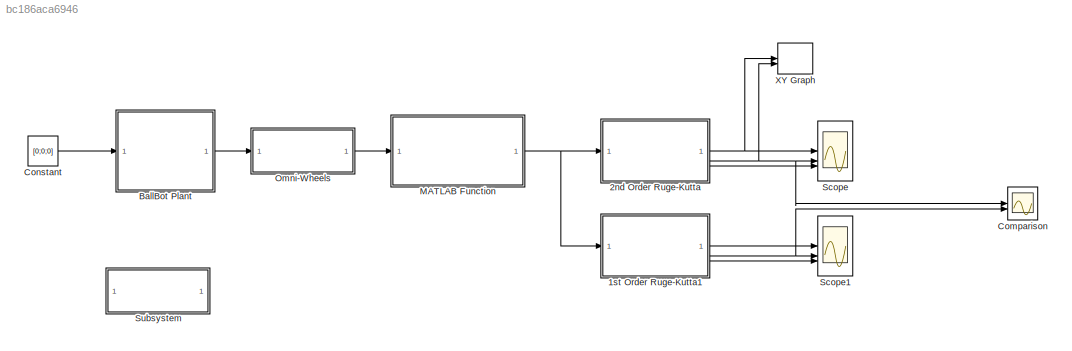
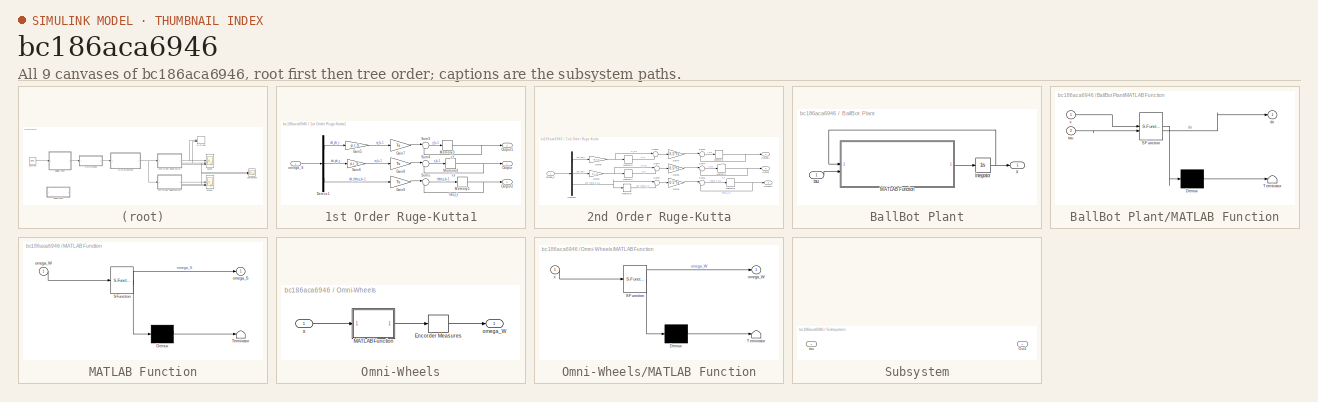
[diagram: thumbnail index - all 9 canvases of the model, root first then tree order]
MODEL slx_bc186aca6946
KIND model
CONFIG AbsTol = auto
CONFIG EnableMultiTasking = off
CONFIG FixedStep = auto
CONFIG MaxStep = auto
CONFIG MinStep = auto
CONFIG RelTol = 1e-3
CONFIG SampleTimeConstraint = Unconstrained
CONFIG SolverName = VariableStepAuto
CONFIG StartTime = 0.0
CONFIG StopTime = 10.0
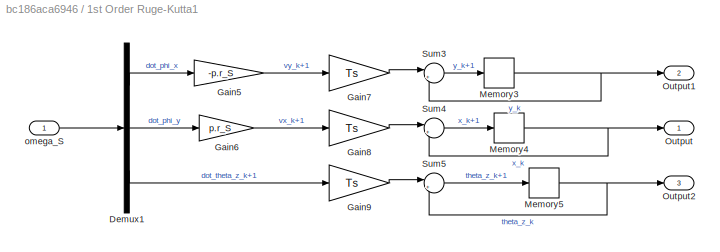
BLOCK [SubSystem] 1st Order Ruge-Kutta1
BLOCK [Demux] 1st Order Ruge-Kutta1/Demux1
  Outputs = 3
BLOCK [Gain] 1st Order Ruge-Kutta1/Gain5
  Gain = -p.r_S
BLOCK [Gain] 1st Order Ruge-Kutta1/Gain6
  Gain = p.r_S
BLOCK [Gain] 1st Order Ruge-Kutta1/Gain7
  Gain = Ts
BLOCK [Gain] 1st Order Ruge-Kutta1/Gain8
  Gain = Ts
BLOCK [Gain] 1st Order Ruge-Kutta1/Gain9
  Gain = Ts
BLOCK [Memory] 1st Order Ruge-Kutta1/Memory3
BLOCK [Memory] 1st Order Ruge-Kutta1/Memory4
BLOCK [Memory] 1st Order Ruge-Kutta1/Memory5
BLOCK [Outport] 1st Order Ruge-Kutta1/Output
BLOCK [Outport] 1st Order Ruge-Kutta1/Output1
  Port = 2
BLOCK [Outport] 1st Order Ruge-Kutta1/Output2
  Port = 3
BLOCK [Sum] 1st Order Ruge-Kutta1/Sum3
  Inputs = |++
BLOCK [Sum] 1st Order Ruge-Kutta1/Sum4
  Inputs = |++
BLOCK [Sum] 1st Order Ruge-Kutta1/Sum5
  Inputs = |++
BLOCK [Inport] 1st Order Ruge-Kutta1/omega_S
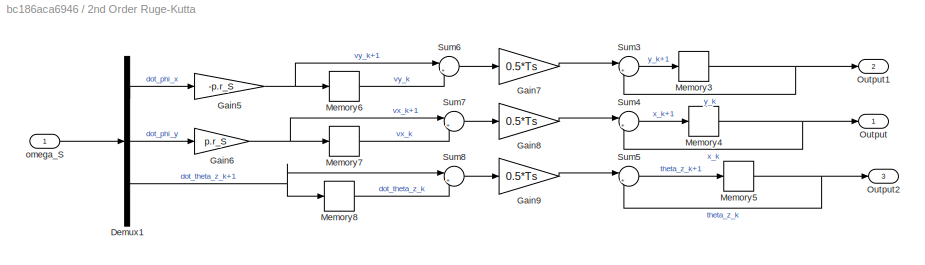
BLOCK [SubSystem] 2nd Order Ruge-Kutta
BLOCK [Demux] 2nd Order Ruge-Kutta/Demux1
  Outputs = 3
BLOCK [Gain] 2nd Order Ruge-Kutta/Gain5
  Gain = -p.r_S
BLOCK [Gain] 2nd Order Ruge-Kutta/Gain6
  Gain = p.r_S
BLOCK [Gain] 2nd Order Ruge-Kutta/Gain7
  Gain = 0.5*Ts
BLOCK [Gain] 2nd Order Ruge-Kutta/Gain8
  Gain = 0.5*Ts
BLOCK [Gain] 2nd Order Ruge-Kutta/Gain9
  Gain = 0.5*Ts
BLOCK [Memory] 2nd Order Ruge-Kutta/Memory3
BLOCK [Memory] 2nd Order Ruge-Kutta/Memory4
BLOCK [Memory] 2nd Order Ruge-Kutta/Memory5
BLOCK [Memory] 2nd Order Ruge-Kutta/Memory6
BLOCK [Memory] 2nd Order Ruge-Kutta/Memory7
BLOCK [Memory] 2nd Order Ruge-Kutta/Memory8
BLOCK [Outport] 2nd Order Ruge-Kutta/Output
BLOCK [Outport] 2nd Order Ruge-Kutta/Output1
  Port = 2
BLOCK [Outport] 2nd Order Ruge-Kutta/Output2
  Port = 3
BLOCK [Sum] 2nd Order Ruge-Kutta/Sum3
  Inputs = |++
BLOCK [Sum] 2nd Order Ruge-Kutta/Sum4
  Inputs = |++
BLOCK [Sum] 2nd Order Ruge-Kutta/Sum5
  Inputs = |++
BLOCK [Sum] 2nd Order Ruge-Kutta/Sum6
  Inputs = |++
BLOCK [Sum] 2nd Order Ruge-Kutta/Sum7
  Inputs = |++
BLOCK [Sum] 2nd Order Ruge-Kutta/Sum8
  Inputs = |++
BLOCK [Inport] 2nd Order Ruge-Kutta/omega_S
BLOCK [SubSystem] BallBot Plant
BLOCK [Integrator] BallBot Plant/Integrator
  InitialCondition = x0(1:10)
BLOCK [SubSystem] BallBot Plant/MATLAB Function
  ErrorFcn = Stateflow.Translate.translate
  PermitHierarchicalResolution = ExplicitOnly
  SFBlockType = MATLAB Function
  TreatAsAtomicUnit = on
BLOCK [Demux] BallBot Plant/MATLAB Function/ Demux 
  Outputs = 1
BLOCK [S-Function] BallBot Plant/MATLAB Function/ SFunction 
  EnableBusSupport = on
  FunctionName = sf_sfun
  Parameters = p
  PortCounts = [2 2]
  SFcnIsStateOwnerBlock = off
  SFunctionDeploymentMode = off
  Tag = Stateflow S-Function 4
BLOCK [Terminator] BallBot Plant/MATLAB Function/ Terminator 
BLOCK [Outport] BallBot Plant/MATLAB Function/dx
BLOCK [Inport] BallBot Plant/MATLAB Function/tau
  Port = 2
BLOCK [Inport] BallBot Plant/MATLAB Function/x
BLOCK [Inport] BallBot Plant/tau
BLOCK [Outport] BallBot Plant/x
BLOCK [Scope] Comparison
  Floating = off
  NumInputPorts = 2
  ScopeSpecificationString = Simulink.scopes.TimeScopeBlockCfg('CurrentConfiguration', extmgr.ConfigurationSet(extmgr.Configuration('Core','General UI',true),extmgr.Configuration('Core','Source UI',true),extmgr.Configuration('Sources','WiredSimulink',true,'DataLoggingVariableName','ScopeData2'),extmgr.Configuration('Visuals','Time Domain',true,'SerializedDisplays',{struct('MinYLimReal','-0.5783','MaxYLimReal','0.55383','YLabe...<+1521ch>
BLOCK [Constant] Constant
  Value = [0;0;0]
BLOCK [SubSystem] MATLAB Function
  ErrorFcn = Stateflow.Translate.translate
  PermitHierarchicalResolution = ExplicitOnly
  SFBlockType = MATLAB Function
  TreatAsAtomicUnit = on
BLOCK [Demux] MATLAB Function/ Demux 
  Outputs = 1
BLOCK [S-Function] MATLAB Function/ SFunction 
  EnableBusSupport = on
  FunctionName = sf_sfun
  Parameters = p
  PortCounts = [1 2]
  SFcnIsStateOwnerBlock = off
  SFunctionDeploymentMode = off
  Tag = Stateflow S-Function 1
BLOCK [Terminator] MATLAB Function/ Terminator 
BLOCK [Outport] MATLAB Function/omega_S
BLOCK [Inport] MATLAB Function/omega_W
BLOCK [SubSystem] Omni-Wheels
BLOCK [ZeroOrderHold] Omni-Wheels/Encorder Measures
  SampleTime = Ts
BLOCK [SubSystem] Omni-Wheels/MATLAB Function
  ErrorFcn = Stateflow.Translate.translate
  PermitHierarchicalResolution = ExplicitOnly
  SFBlockType = MATLAB Function
  TreatAsAtomicUnit = on
BLOCK [Demux] Omni-Wheels/MATLAB Function/ Demux 
  Outputs = 1
BLOCK [S-Function] Omni-Wheels/MATLAB Function/ SFunction 
  EnableBusSupport = on
  FunctionName = sf_sfun
  Parameters = p
  PortCounts = [1 2]
  SFcnIsStateOwnerBlock = off
  SFunctionDeploymentMode = off
  Tag = Stateflow S-Function 2
BLOCK [Terminator] Omni-Wheels/MATLAB Function/ Terminator 
BLOCK [Outport] Omni-Wheels/MATLAB Function/omega_W
BLOCK [Inport] Omni-Wheels/MATLAB Function/x
BLOCK [Outport] Omni-Wheels/omega_W
BLOCK [Inport] Omni-Wheels/x
BLOCK [Scope] Scope
  Floating = off
  NumInputPorts = 3
  ScopeSpecificationString = Simulink.scopes.TimeScopeBlockCfg('CurrentConfiguration', extmgr.ConfigurationSet(extmgr.Configuration('Core','General UI',true),extmgr.Configuration('Core','Source UI',true),extmgr.Configuration('Sources','WiredSimulink',true),extmgr.Configuration('Visuals','Time Domain',true,'SerializedDisplays',{struct('MinYLimReal','-0.57805','MaxYLimReal','0.55366','YLabelReal','','MinYLimMag','0.00000','MaxY...<+1664ch>
BLOCK [Scope] Scope1
  Floating = off
  NumInputPorts = 3
  ScopeSpecificationString = Simulink.scopes.TimeScopeBlockCfg('CurrentConfiguration', extmgr.ConfigurationSet(extmgr.Configuration('Core','General UI',true),extmgr.Configuration('Core','Source UI',true),extmgr.Configuration('Sources','WiredSimulink',true,'DataLoggingVariableName','ScopeData1'),extmgr.Configuration('Visuals','Time Domain',true,'SerializedDisplays',{struct('MinYLimReal','-0.5783','MaxYLimReal','0.55383','YLabe...<+1617ch>
BLOCK [SubSystem] Subsystem
BLOCK [Outport] Subsystem/Out1
BLOCK [Inport] Subsystem/tau
BLOCK [Record] XY Graph
  CompatibilityTag = XY
  FileSettingsInternal = {"entries":[{"content":{"excelSettings":{"content":{},"type":"Streamout.ExcelSettings"}},"type":"Streamout.FileSettingStorage","uuid":""}],"packageUris":["http:\/\/schema.mathworks.com\/mf0\/streamout_blocks\/R2020a"],"version":"1.0"}
  Layout = [1 1]
  SignalsInternal = {"entries":[{"content":{"signals":[{"content":{"blockPath":[],"dimensions":[1],"domain":"","lineColor":"#a2142f","plots":[ 1 ],"port":1,"signalID":1,"signalName":"2nd Order Ruge-Kutta:1"},"type":"RecordBlkView.Signal","uuid":""},{"content":{"blockPath":[],"dimensions":[1],"domain":"","lineColor":"#139fff","plots":[ 1 ],"port":2,"signalID":2,"signalName":"2nd Order Ruge-Kutta:2"},"type":"RecordBlkV...<+168ch>
  VisualizationBindings = {"xyplotplugin":{"info":[{"series":[{"bindingParametersList":[{"parameter":"X-Axis","signalID":1,"signalName":"2nd Order Ruge-Kutta:1"},{"parameter":"Y-Axis","signalID":2,"signalName":"2nd Order Ruge-Kutta:2"}],"seriesID":0}],"subplotID":1}]}}
LINE 1st Order Ruge-Kutta1/Demux1:1 -> 1st Order Ruge-Kutta1/Gain5:1
LINE 1st Order Ruge-Kutta1/Demux1:2 -> 1st Order Ruge-Kutta1/Gain6:1
LINE 1st Order Ruge-Kutta1/Demux1:3 -> 1st Order Ruge-Kutta1/Gain9:1
LINE 1st Order Ruge-Kutta1/Gain5:1 -> 1st Order Ruge-Kutta1/Gain7:1
LINE 1st Order Ruge-Kutta1/Gain6:1 -> 1st Order Ruge-Kutta1/Gain8:1
LINE 1st Order Ruge-Kutta1/Gain7:1 -> 1st Order Ruge-Kutta1/Sum3:1
LINE 1st Order Ruge-Kutta1/Gain8:1 -> 1st Order Ruge-Kutta1/Sum4:1
LINE 1st Order Ruge-Kutta1/Gain9:1 -> 1st Order Ruge-Kutta1/Sum5:1
NET 1st Order Ruge-Kutta1/Memory3:1 -> 1st Order Ruge-Kutta1/Output1:1, 1st Order Ruge-Kutta1/Sum3:2
NET 1st Order Ruge-Kutta1/Memory4:1 -> 1st Order Ruge-Kutta1/Output:1, 1st Order Ruge-Kutta1/Sum4:2
NET 1st Order Ruge-Kutta1/Memory5:1 -> 1st Order Ruge-Kutta1/Output2:1, 1st Order Ruge-Kutta1/Sum5:2
LINE 1st Order Ruge-Kutta1/Sum3:1 -> 1st Order Ruge-Kutta1/Memory3:1
LINE 1st Order Ruge-Kutta1/Sum4:1 -> 1st Order Ruge-Kutta1/Memory4:1
LINE 1st Order Ruge-Kutta1/Sum5:1 -> 1st Order Ruge-Kutta1/Memory5:1
LINE 1st Order Ruge-Kutta1/omega_S:1 -> 1st Order Ruge-Kutta1/Demux1:1
LINE 1st Order Ruge-Kutta1:1 -> Scope1:1
NET 1st Order Ruge-Kutta1:2 -> Comparison:2, Scope1:2
LINE 1st Order Ruge-Kutta1:3 -> Scope1:3
LINE 2nd Order Ruge-Kutta/Demux1:1 -> 2nd Order Ruge-Kutta/Gain5:1
LINE 2nd Order Ruge-Kutta/Demux1:2 -> 2nd Order Ruge-Kutta/Gain6:1
NET 2nd Order Ruge-Kutta/Demux1:3 -> 2nd Order Ruge-Kutta/Memory8:1, 2nd Order Ruge-Kutta/Sum8:1
NET 2nd Order Ruge-Kutta/Gain5:1 -> 2nd Order Ruge-Kutta/Memory6:1, 2nd Order Ruge-Kutta/Sum6:1
NET 2nd Order Ruge-Kutta/Gain6:1 -> 2nd Order Ruge-Kutta/Memory7:1, 2nd Order Ruge-Kutta/Sum7:1
LINE 2nd Order Ruge-Kutta/Gain7:1 -> 2nd Order Ruge-Kutta/Sum3:1
LINE 2nd Order Ruge-Kutta/Gain8:1 -> 2nd Order Ruge-Kutta/Sum4:1
LINE 2nd Order Ruge-Kutta/Gain9:1 -> 2nd Order Ruge-Kutta/Sum5:1
NET 2nd Order Ruge-Kutta/Memory3:1 -> 2nd Order Ruge-Kutta/Output1:1, 2nd Order Ruge-Kutta/Sum3:2
NET 2nd Order Ruge-Kutta/Memory4:1 -> 2nd Order Ruge-Kutta/Output:1, 2nd Order Ruge-Kutta/Sum4:2
NET 2nd Order Ruge-Kutta/Memory5:1 -> 2nd Order Ruge-Kutta/Output2:1, 2nd Order Ruge-Kutta/Sum5:2
LINE 2nd Order Ruge-Kutta/Memory6:1 -> 2nd Order Ruge-Kutta/Sum6:2
LINE 2nd Order Ruge-Kutta/Memory7:1 -> 2nd Order Ruge-Kutta/Sum7:2
LINE 2nd Order Ruge-Kutta/Memory8:1 -> 2nd Order Ruge-Kutta/Sum8:2
LINE 2nd Order Ruge-Kutta/Sum3:1 -> 2nd Order Ruge-Kutta/Memory3:1
LINE 2nd Order Ruge-Kutta/Sum4:1 -> 2nd Order Ruge-Kutta/Memory4:1
LINE 2nd Order Ruge-Kutta/Sum5:1 -> 2nd Order Ruge-Kutta/Memory5:1
LINE 2nd Order Ruge-Kutta/Sum6:1 -> 2nd Order Ruge-Kutta/Gain7:1
LINE 2nd Order Ruge-Kutta/Sum7:1 -> 2nd Order Ruge-Kutta/Gain8:1
LINE 2nd Order Ruge-Kutta/Sum8:1 -> 2nd Order Ruge-Kutta/Gain9:1
LINE 2nd Order Ruge-Kutta/omega_S:1 -> 2nd Order Ruge-Kutta/Demux1:1
NET 2nd Order Ruge-Kutta:1 -> Scope:1, XY Graph:1
NET 2nd Order Ruge-Kutta:2 -> Comparison:1, Scope:2, XY Graph:2
LINE 2nd Order Ruge-Kutta:3 -> Scope:3
NET BallBot Plant/Integrator:1 -> BallBot Plant/MATLAB Function:1, BallBot Plant/x:1
LINE BallBot Plant/MATLAB Function:1 -> BallBot Plant/Integrator:1
LINE BallBot Plant/tau:1 -> BallBot Plant/MATLAB Function:2
LINE BallBot Plant:1 -> Omni-Wheels:1
LINE Constant:1 -> BallBot Plant:1
NET MATLAB Function:1 -> 1st Order Ruge-Kutta1:1, 2nd Order Ruge-Kutta:1
LINE Omni-Wheels/Encorder Measures:1 -> Omni-Wheels/omega_W:1
LINE Omni-Wheels/MATLAB Function:1 -> Omni-Wheels/Encorder Measures:1
LINE Omni-Wheels/x:1 -> Omni-Wheels/MATLAB Function:1
LINE Omni-Wheels:1 -> MATLAB Function:1
note: NET lines group one-source signal fan-out (src -> all destinations, sorted); 1:1 wires keep LINE
CHART MATLAB Function states=1 transitions=1
  STATE_LABEL 'eML_blk_kernel()'
  STATE_LABEL 'SCRIPT:\nfunction omega_S = V_3D (omega_W, p)\n%alpha is the angular displacement of the contact point with the vertical axis of the sphere wheel. \n%beta is the vector of the angual displacements of each omni-wheel qith\n%respect to the x axis of the sphere wheel and those are [0, 2*pi/3,4*pi/3]\n\nalpha = pi/4; % alpha = p.alpha;\nbeta = [0; 2*pi/2; 4*pi/3];% beta = p.beta;\nr_S = p.r_S;\nr_W = p.r_ow;\n\n...<+642ch>'
CHART Omni-Wheels/MATLAB Function states=1 transitions=1
  STATE_LABEL 'eML_blk_kernel()'
  STATE_LABEL 'SCRIPT:\n\nfunction omega_W = V_3D_inv (x, p)\n% alpha is the angular displacement of the contact point with the vertical axis of the sphere wheel.\nalpha = pi/4; % alpha = p.alpha;\nbeta = [0; 2*pi/2; 4*pi/3];% beta = p.beta;\nr_S = p.r_S;\nr_W = p.r_ow;\n% beta is the vector of the angual displacements of each omni-wheel qith\n%respect to the x axis of the sphere wheel and those are [0, 2*pi/3,4*pi/3]\n  ...<+710ch>'
CHART BallBot Plant/MATLAB Function states=1 transitions=1
  STATE_LABEL 'eML_blk_kernel()'
  STATE_LABEL 'SCRIPT:\nfunction dx = stateDerivative3D_generated(x, p, tau)\n    % SW was assumed to not spin relative to the ground\n    \n    % Unpack state vector (10 elements)\n    theta_x = x(1); dot_theta_x = x(6);\n    theta_y = x(2); dot_theta_y = x(7);\n    theta_z = x(3); dot_theta_z = x(8);\n    % phi_x   = x(4); % Not needed for dynamics\n    % phi_y   = x(5); % Not needed for dynamics\n    dot_phi_x   = x(9)...<+1663ch>'
CHART  states=0 transitions=0
CHART  states=0 transitions=0
CHART  states=0 transitions=0
